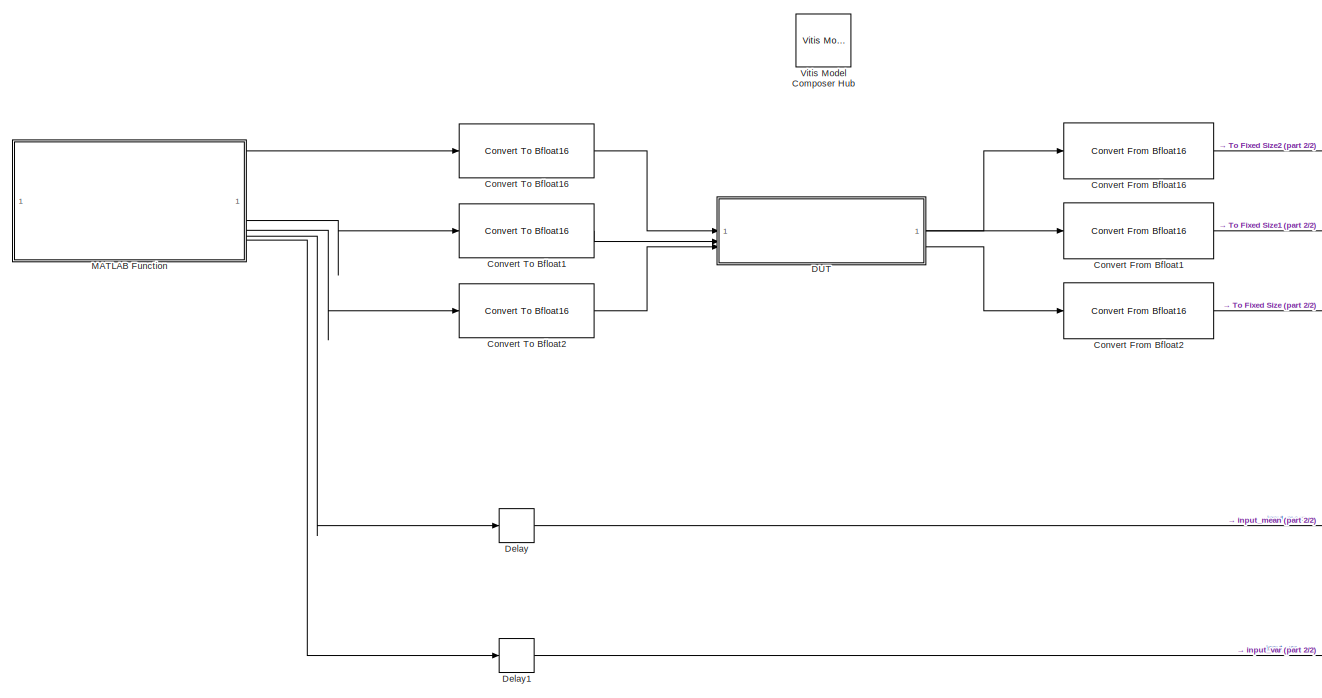
[diagram: root canvas - part 1/2, left side, full height]
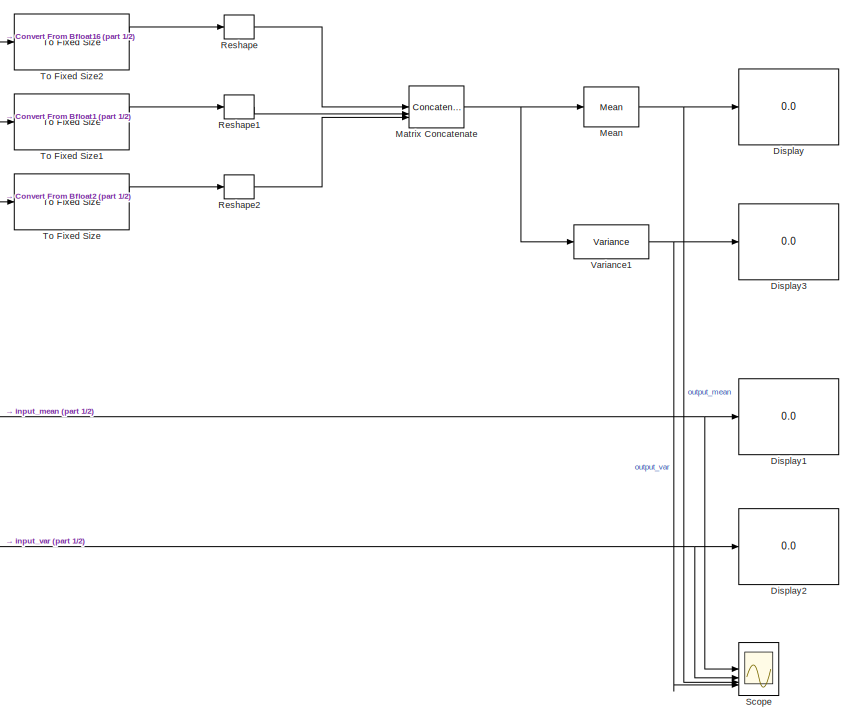
[diagram: root canvas - part 2/2, right side, full height]
MODEL slx_62880151899f
KIND model
CONFIG AbsTol = auto
CONFIG EnableMultiTasking = off
CONFIG FixedStep = auto
CONFIG InitFcn = COL=256;\nROW=384;\nNUM=6;\nK_COL=COL;\nK_ROW=ROW/NUM;\nPLIO_NUM=3;\n\nmtxA_w = [];\nfor i=0:2\n    pattern = struct('buffer_dimension', [COL,ROW], 'tiling_dimension', [COL,ROW/PLIO_NUM], 'offset', [0,ROW/PLIO_NUM*i]);\n    mtxA_w = [mtxA_w, pattern];\nend\n\nmtxA_r = [];\nfor i=0:5\n    pattern = struct('buffer_dimension', [COL,ROW], 'tiling_dimension', [K_COL,K_ROW], 'offset', [0,K_ROW*i]);\n    mtxA_r = [mtxA_...<+475ch>
CONFIG MaxStep = auto
CONFIG MinStep = auto
CONFIG RelTol = 1e-3
CONFIG SampleTimeConstraint = Unconstrained
CONFIG SolverName = VariableStepAuto
CONFIG StartTime = 0.0
CONFIG StopTime = 20
BLOCK [Reference] Convert From Bfloat1  REF=aieUtilities/Convert From Bfloat16
  SourceBlock = aieUtilities/Convert From Bfloat16
  SourceType = Convert From Bfloat16
BLOCK [Reference] Convert From Bfloat16  REF=aieUtilities/Convert From Bfloat16
  SourceBlock = aieUtilities/Convert From Bfloat16
  SourceType = Convert From Bfloat16
BLOCK [Reference] Convert From Bfloat2  REF=aieUtilities/Convert From Bfloat16
  SourceBlock = aieUtilities/Convert From Bfloat16
  SourceType = Convert From Bfloat16
BLOCK [Reference] Convert To Bfloat1  REF=aieUtilities/Convert To Bfloat16
  SourceBlock = aieUtilities/Convert To Bfloat16
  SourceType = Convert To Bfloat16
BLOCK [Reference] Convert To Bfloat16  REF=aieUtilities/Convert To Bfloat16
  SourceBlock = aieUtilities/Convert To Bfloat16
  SourceType = Convert To Bfloat16
BLOCK [Reference] Convert To Bfloat2  REF=aieUtilities/Convert To Bfloat16
  SourceBlock = aieUtilities/Convert To Bfloat16
  SourceType = Convert To Bfloat16
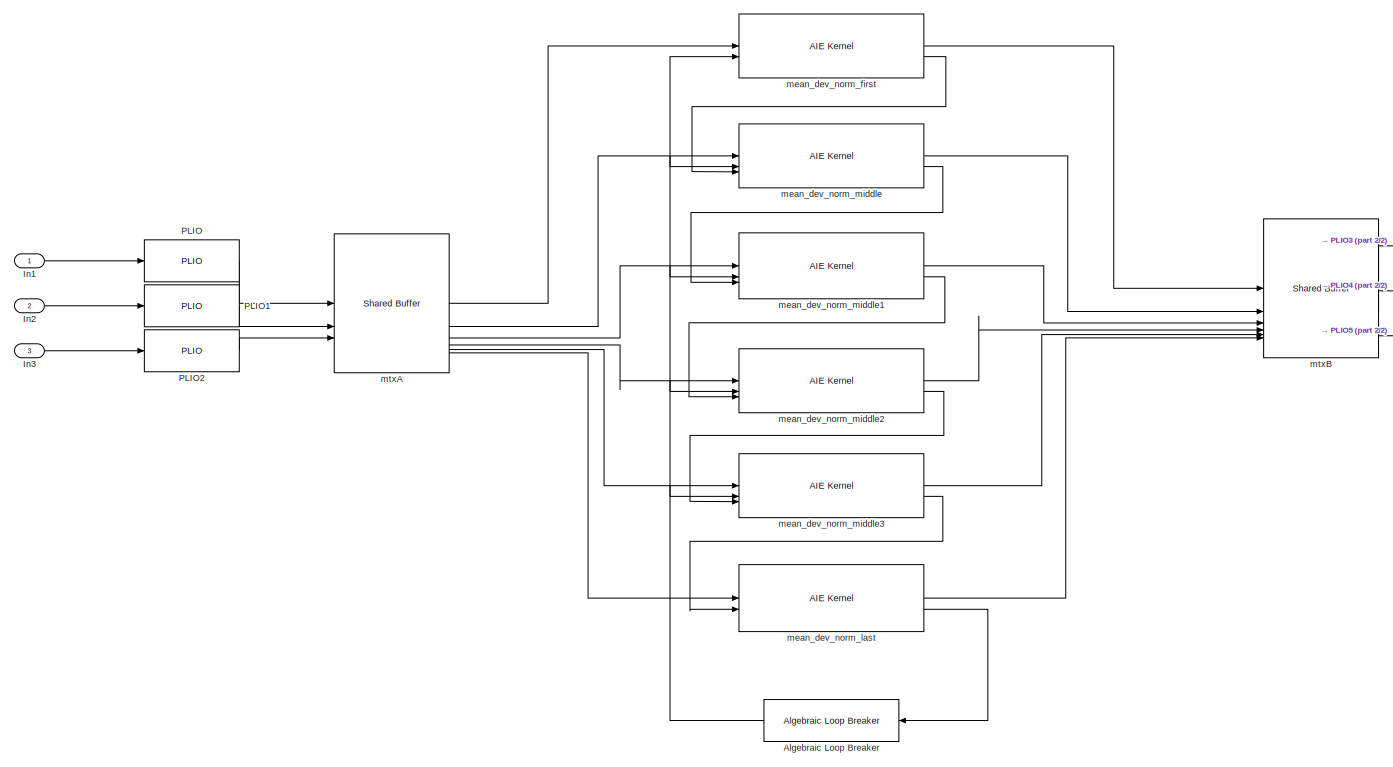
[diagram: DUT - part 1/2, most of the canvas]
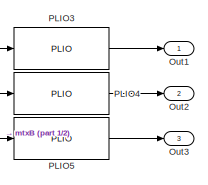
[diagram: DUT - part 2/2, middle right region]
BLOCK [SubSystem] DUT
BLOCK [Reference] DUT/Algebraic Loop Breaker  REF=aieUtilities/Algebraic Loop Breaker
  NameLocation = top
  SourceBlock = aieUtilities/Algebraic Loop Breaker
  SourceType = AlgebraicLoopBreaker
BLOCK [Inport] DUT/In1
BLOCK [Inport] DUT/In2
  Port = 2
BLOCK [Inport] DUT/In3
  Port = 3
BLOCK [Outport] DUT/Out1
BLOCK [Outport] DUT/Out2
  Port = 2
BLOCK [Outport] DUT/Out3
  Port = 3
BLOCK [Reference] DUT/PLIO  REF=aieBasic/PLIO
  SourceBlock = aieBasic/PLIO
  SourceType = PLIO
BLOCK [Reference] DUT/PLIO1  REF=aieBasic/PLIO
  SourceBlock = aieBasic/PLIO
  SourceType = PLIO
BLOCK [Reference] DUT/PLIO2  REF=aieBasic/PLIO
  SourceBlock = aieBasic/PLIO
  SourceType = PLIO
BLOCK [Reference] DUT/PLIO3  REF=aieBasic/PLIO
  SourceBlock = aieBasic/PLIO
  SourceType = PLIO
BLOCK [Reference] DUT/PLIO4  REF=aieBasic/PLIO
  SourceBlock = aieBasic/PLIO
  SourceType = PLIO
BLOCK [Reference] DUT/PLIO5  REF=aieBasic/PLIO
  SourceBlock = aieBasic/PLIO
  SourceType = PLIO
BLOCK [Reference] DUT/mean_dev_norm_first  REF=aieBasic/AIE Kernel
  SourceBlock = aieBasic/AIE Kernel
  SourceType = AIE Kernel Function
BLOCK [Reference] DUT/mean_dev_norm_last  REF=aieBasic/AIE Kernel
  SourceBlock = aieBasic/AIE Kernel
  SourceType = AIE Kernel Function
BLOCK [Reference] DUT/mean_dev_norm_middle  REF=aieBasic/AIE Kernel
  SourceBlock = aieBasic/AIE Kernel
  SourceType = AIE Kernel Function
BLOCK [Reference] DUT/mean_dev_norm_middle1  REF=aieBasic/AIE Kernel
  SourceBlock = aieBasic/AIE Kernel
  SourceType = AIE Kernel Function
BLOCK [Reference] DUT/mean_dev_norm_middle2  REF=aieBasic/AIE Kernel
  SourceBlock = aieBasic/AIE Kernel
  SourceType = AIE Kernel Function
BLOCK [Reference] DUT/mean_dev_norm_middle3  REF=aieBasic/AIE Kernel
  SourceBlock = aieBasic/AIE Kernel
  SourceType = AIE Kernel Function
BLOCK [Reference] DUT/mtxA  REF=aieBasic/Shared Buffer
  SourceBlock = aieBasic/Shared Buffer
  SourceType = Shared Buffer
BLOCK [Reference] DUT/mtxB  REF=aieBasic/Shared Buffer
  SourceBlock = aieBasic/Shared Buffer
  SourceType = Shared Buffer
BLOCK [Delay] Delay
  InputPortMap = u0
BLOCK [Delay] Delay1
  InputPortMap = u0
BLOCK [Display] Display
  Decimation = 1
BLOCK [Display] Display1
  Decimation = 1
BLOCK [Display] Display2
  Decimation = 1
BLOCK [Display] Display3
  Decimation = 1
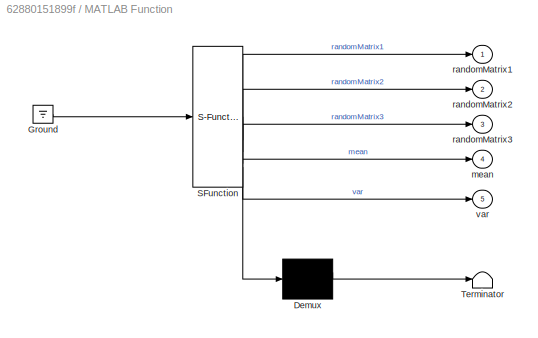
BLOCK [SubSystem] MATLAB Function
  ErrorFcn = Stateflow.Translate.translate
  PermitHierarchicalResolution = ExplicitOnly
  SFBlockType = MATLAB Function
  TreatAsAtomicUnit = on
BLOCK [Demux] MATLAB Function/ Demux 
  Outputs = 1
BLOCK [Ground] MATLAB Function/ Ground 
BLOCK [S-Function] MATLAB Function/ SFunction 
  EnableBusSupport = off
  FunctionName = sf_sfun
  Parameters = numCols,numRows
  PortCounts = [1 6]
  SFcnIsStateOwnerBlock = off
  SFunctionDeploymentMode = off
  Tag = Stateflow S-Function 2
BLOCK [Terminator] MATLAB Function/ Terminator 
BLOCK [Outport] MATLAB Function/mean
  Port = 4
BLOCK [Outport] MATLAB Function/randomMatrix1
BLOCK [Outport] MATLAB Function/randomMatrix2
  Port = 2
BLOCK [Outport] MATLAB Function/randomMatrix3
  Port = 3
BLOCK [Outport] MATLAB Function/var
  Port = 5
BLOCK [Concatenate] Matrix Concatenate
  Mode = Multidimensional array
  NumInputs = 3
BLOCK [Reference] Mean  REF=dspstat3/Mean
  SourceBlock = dspstat3/Mean
  SourceType = Mean
  UserDataPersistent = on
BLOCK [Reshape] Reshape
  OutputDimensionality = Customize
  OutputDimensions = [ROW/PLIO_NUM,COL]
BLOCK [Reshape] Reshape1
  OutputDimensionality = Customize
  OutputDimensions = [ROW/PLIO_NUM,COL]
BLOCK [Reshape] Reshape2
  OutputDimensionality = Customize
  OutputDimensions = [ROW/PLIO_NUM,COL]
BLOCK [Scope] Scope
  Floating = off
  NumInputPorts = 4
  ScopeSpecificationString = Simulink.scopes.TimeScopeBlockCfg('CurrentConfiguration', extmgr.ConfigurationSet(extmgr.Configuration('Core','General UI',true,'DisplayFullSourceName',false,'ShowMainToolbar',true),extmgr.Configuration('Sources','WiredSimulink',true,'DataLogging',false,'DataLoggingVariableName','ScopeData','DataLoggingLimitDataPoints',false,'DataLoggingMaxPoints','5000','DataLoggingDecimateData',true,'DataLogging...<+4398ch>
BLOCK [Reference] To Fixed Size  REF=aieUtilities/To Fixed Size
  SourceBlock = aieUtilities/To Fixed Size
  SourceType = To Fixed Size
BLOCK [Reference] To Fixed Size1  REF=aieUtilities/To Fixed Size
  SourceBlock = aieUtilities/To Fixed Size
  SourceType = To Fixed Size
BLOCK [Reference] To Fixed Size2  REF=aieUtilities/To Fixed Size
  SourceBlock = aieUtilities/To Fixed Size
  SourceType = To Fixed Size
BLOCK [Reference] Variance1  REF=dspstat3/Variance
  SourceBlock = dspstat3/Variance
  SourceType = Variance
  UserDataPersistent = on
BLOCK [Reference] Vitis Model Composer Hub  REF=vmcUtilities/Vitis Model Composer Hub
  SourceBlock = vmcUtilities/Vitis Model Composer Hub
  SourceType = VMC Hub
  Tag = genX
  UserDataPersistent = on
LINE Convert From Bfloat16:1 -> To Fixed Size2:1
LINE Convert From Bfloat1:1 -> To Fixed Size1:1
LINE Convert From Bfloat2:1 -> To Fixed Size:1
LINE Convert To Bfloat16:1 -> DUT:1
LINE Convert To Bfloat1:1 -> DUT:2
LINE Convert To Bfloat2:1 -> DUT:3
NET DUT/Algebraic Loop Breaker:1 -> DUT/mean_dev_norm_first:2, DUT/mean_dev_norm_middle1:2, DUT/mean_dev_norm_middle2:2, DUT/mean_dev_norm_middle3:2, DUT/mean_dev_norm_middle:2
LINE DUT/In1:1 -> DUT/PLIO:1
LINE DUT/In2:1 -> DUT/PLIO1:1
LINE DUT/In3:1 -> DUT/PLIO2:1
LINE DUT/PLIO1:1 -> DUT/mtxA:2
LINE DUT/PLIO2:1 -> DUT/mtxA:3
LINE DUT/PLIO3:1 -> DUT/Out1:1
LINE DUT/PLIO4:1 -> DUT/Out2:1
LINE DUT/PLIO5:1 -> DUT/Out3:1
LINE DUT/PLIO:1 -> DUT/mtxA:1
LINE DUT/mean_dev_norm_first:1 -> DUT/mtxB:1
LINE DUT/mean_dev_norm_first:2 -> DUT/mean_dev_norm_middle:3
LINE DUT/mean_dev_norm_last:1 -> DUT/mtxB:6
LINE DUT/mean_dev_norm_last:2 -> DUT/Algebraic Loop Breaker:1
LINE DUT/mean_dev_norm_middle1:1 -> DUT/mtxB:3
LINE DUT/mean_dev_norm_middle1:2 -> DUT/mean_dev_norm_middle2:3
LINE DUT/mean_dev_norm_middle2:1 -> DUT/mtxB:4
LINE DUT/mean_dev_norm_middle2:2 -> DUT/mean_dev_norm_middle3:3
LINE DUT/mean_dev_norm_middle3:1 -> DUT/mtxB:5
LINE DUT/mean_dev_norm_middle3:2 -> DUT/mean_dev_norm_last:2
LINE DUT/mean_dev_norm_middle:1 -> DUT/mtxB:2
LINE DUT/mean_dev_norm_middle:2 -> DUT/mean_dev_norm_middle1:3
LINE DUT/mtxA:1 -> DUT/mean_dev_norm_first:1
LINE DUT/mtxA:2 -> DUT/mean_dev_norm_middle:1
LINE DUT/mtxA:3 -> DUT/mean_dev_norm_middle1:1
LINE DUT/mtxA:4 -> DUT/mean_dev_norm_middle2:1
LINE DUT/mtxA:5 -> DUT/mean_dev_norm_middle3:1
LINE DUT/mtxA:6 -> DUT/mean_dev_norm_last:1
LINE DUT/mtxB:1 -> DUT/PLIO3:1
LINE DUT/mtxB:2 -> DUT/PLIO4:1
LINE DUT/mtxB:3 -> DUT/PLIO5:1
LINE DUT:1 -> Convert From Bfloat16:1
LINE DUT:2 -> Convert From Bfloat1:1
LINE DUT:3 -> Convert From Bfloat2:1
NET Delay1:1 -> Display2:1, Scope:2
NET Delay:1 -> Display1:1, Scope:1
LINE MATLAB Function:1 -> Convert To Bfloat16:1
LINE MATLAB Function:2 -> Convert To Bfloat1:1
LINE MATLAB Function:3 -> Convert To Bfloat2:1
LINE MATLAB Function:4 -> Delay:1
LINE MATLAB Function:5 -> Delay1:1
NET Matrix Concatenate:1 -> Mean:1, Variance1:1
NET Mean:1 -> Display:1, Scope:3
LINE Reshape1:1 -> Matrix Concatenate:2
LINE Reshape2:1 -> Matrix Concatenate:3
LINE Reshape:1 -> Matrix Concatenate:1
LINE To Fixed Size1:1 -> Reshape1:1
LINE To Fixed Size2:1 -> Reshape:1
LINE To Fixed Size:1 -> Reshape2:1
NET Variance1:1 -> Display3:1, Scope:4
note: NET lines group one-source signal fan-out (src -> all destinations, sorted); 1:1 wires keep LINE
CHART MATLAB Function states=1 transitions=1
  STATE_LABEL 'eML_blk_kernel()'
  STATE_LABEL 'SCRIPT:\nfunction [randomMatrix1, randomMatrix2, randomMatrix3, mean, var] = generateRandomMatrix(numRows, numCols)\n\npersistent p \n\nif isempty(p)\n    p = 0;\nend\n\nrandomMean = rand(1)*2^14+128;\nrandomGain = rand(1)*2^14+128;\n\nif rem(p,2)==0\n    randomMatrix = randn(numRows*numCols,1)*randomGain + randomMean; % Generate random matrix\n\n    randomMatrix1 = randomMatrix(1:numRows/3*numCols);\n    randomM...<+292ch>'
CHART  states=0 transitions=0
